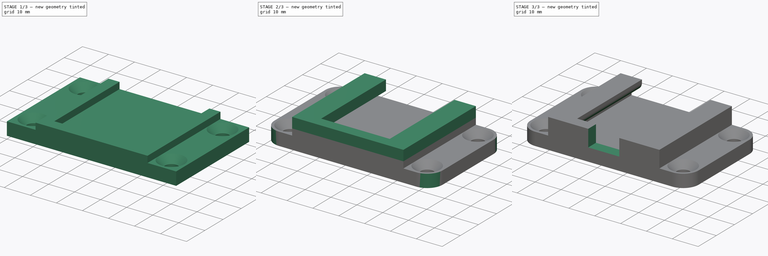
[diagram: build sequence overview — one tinted view per stage of 3, left to right]
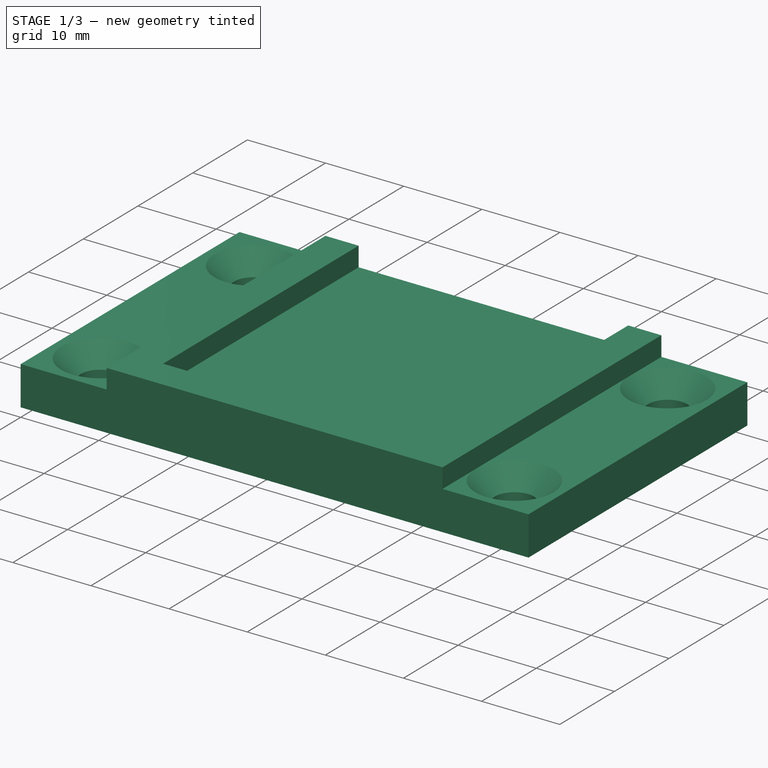
[diagram: stage 1 of 3 — iso view after this stage's code; geometry added in this stage tinted green]
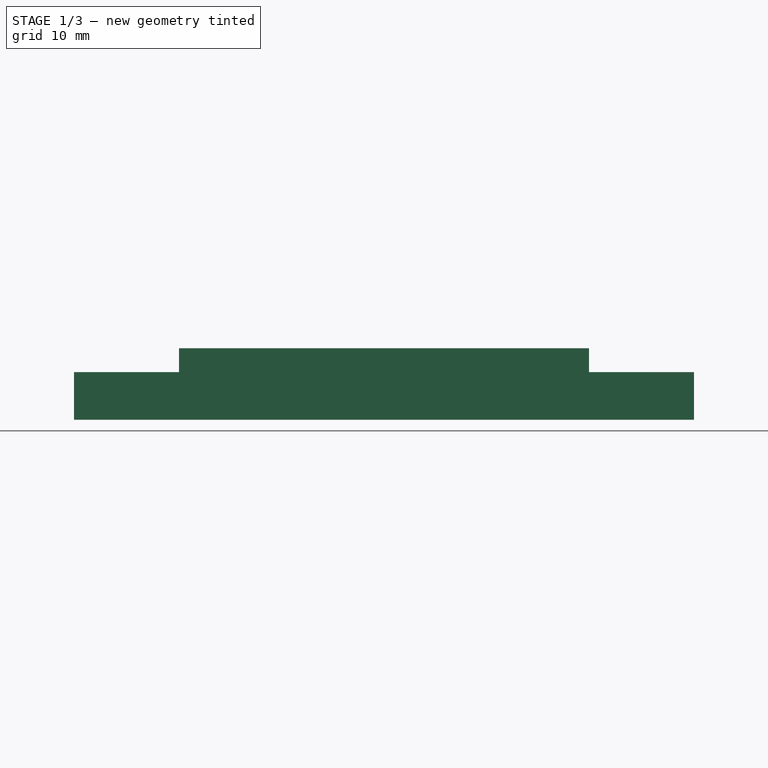
[diagram: stage 1 of 3 — front view after this stage's code; geometry added in this stage tinted green]
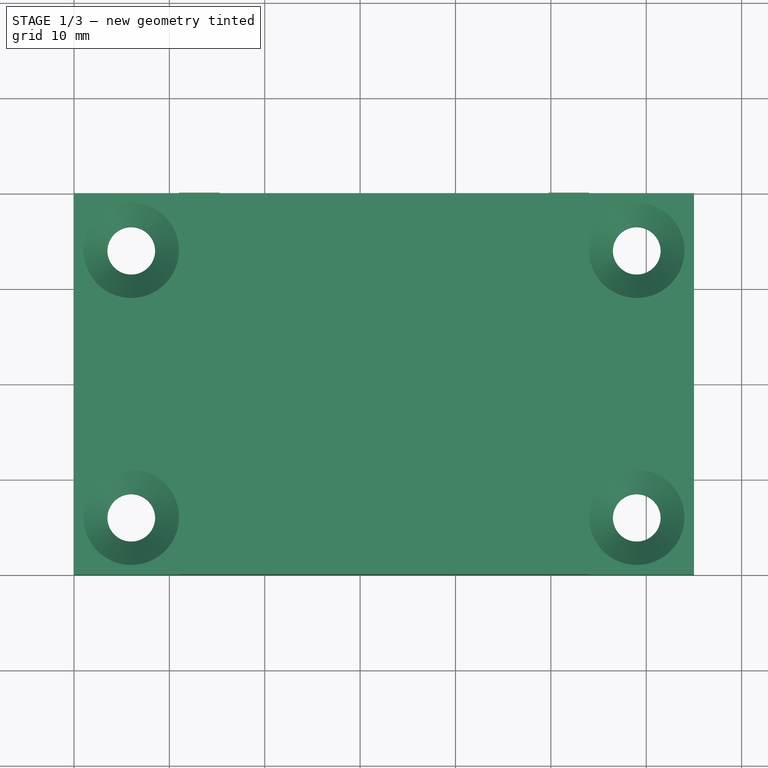
[diagram: stage 1 of 3 — top view after this stage's code; geometry added in this stage tinted green]
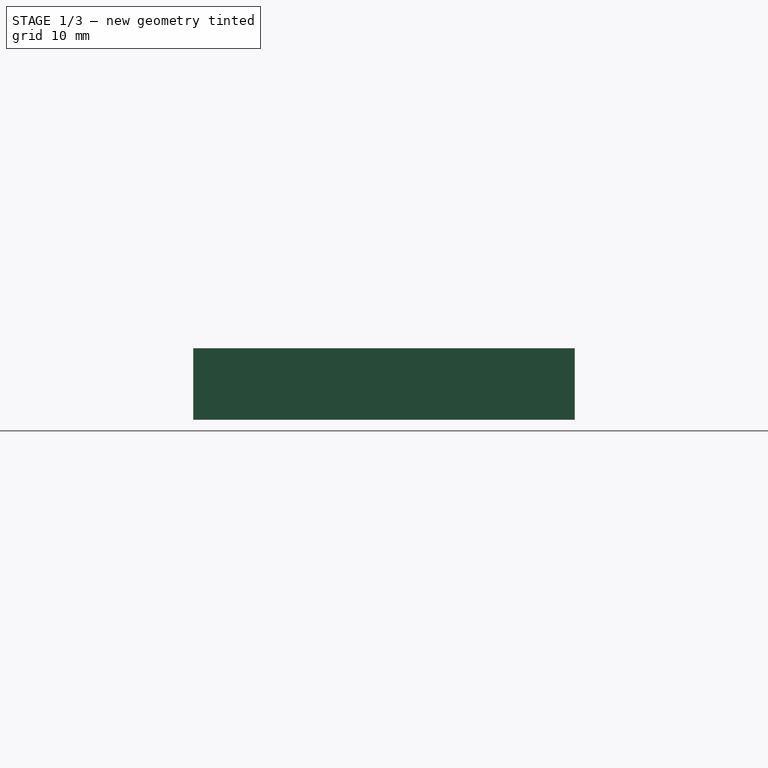
[diagram: stage 1 of 3 — right view after this stage's code; geometry added in this stage tinted green]
FCSTD DOCUMENT  (FreeCAD 0.21R33771 (Git))
Label: Vorwerk-SC7
License: All rights reserved
LicenseURL: https://en.wikipedia.org/wiki/All_rights_reserved
objects: Sketcher::SketchObject×4, PartDesign::Pad×3, PartDesign::Fillet×3, PartDesign::Hole×1, PartDesign::Pocket×1, PartDesign::Body×1
note: 21 computed .brp shape members not serialized (recipe doc carries the construction recipe); baked Part::Feature solids carry a one-line shape summary decoded from their .brp

FEATURE [Sketcher::SketchObject] Sketch
  FullyConstrained = true
  MapMode = 5
  Support = -> [XY_Plane]
  sketch-geometry (24):
    g0: LineSegment StartX=0 StartY=0 StartZ=0 EndX=65 EndY=0 EndZ=0
    g1: LineSegment StartX=65 StartY=0 StartZ=0 EndX=65 EndY=40 EndZ=0
    g2: LineSegment StartX=65 StartY=40 StartZ=0 EndX=0 EndY=40 EndZ=0
    g3: LineSegment StartX=0 StartY=40 StartZ=0 EndX=0 EndY=0 EndZ=0
    g4: Circle CenterX=6 CenterY=34 CenterZ=0 NormalX=0 NormalY=0 NormalZ=1 AngleXU=0 Radius=2
    g5: Circle CenterX=59 CenterY=34 CenterZ=0 NormalX=0 NormalY=0 NormalZ=1 AngleXU=0 Radius=2
    g6: Circle CenterX=59 CenterY=6 CenterZ=0 NormalX=0 NormalY=0 NormalZ=1 AngleXU=0 Radius=2
    g7: Circle CenterX=6 CenterY=6 CenterZ=0 NormalX=0 NormalY=0 NormalZ=1 AngleXU=0 Radius=2
    g8: LineSegment StartX=0 StartY=0 StartZ=0 EndX=6 EndY=0 EndZ=0
    g9: LineSegment StartX=6 StartY=0 StartZ=0 EndX=6 EndY=6 EndZ=0
    g10: LineSegment StartX=6 StartY=6 StartZ=0 EndX=0 EndY=6 EndZ=0
    g11: LineSegment StartX=0 StartY=6 StartZ=0 EndX=0 EndY=0 EndZ=0
    g12: LineSegment StartX=0 StartY=40 StartZ=0 EndX=6 EndY=40 EndZ=0
    g13: LineSegment StartX=6 StartY=40 StartZ=0 EndX=6 EndY=34 EndZ=0
    g14: LineSegment StartX=6 StartY=34 StartZ=0 EndX=0 EndY=34 EndZ=0
    g15: LineSegment StartX=0 StartY=34 StartZ=0 EndX=0 EndY=40 EndZ=0
    g16: LineSegment StartX=65 StartY=40 StartZ=0 EndX=59 EndY=40 EndZ=0
    g17: LineSegment StartX=59 StartY=40 StartZ=0 EndX=59 EndY=34 EndZ=0
    g18: LineSegment StartX=59 StartY=34 StartZ=0 EndX=65 EndY=34 EndZ=0
    g19: LineSegment StartX=65 StartY=34 StartZ=0 EndX=65 EndY=40 EndZ=0
    g20: LineSegment StartX=65 StartY=0 StartZ=0 EndX=59 EndY=0 EndZ=0
    g21: LineSegment StartX=59 StartY=0 StartZ=0 EndX=59 EndY=6 EndZ=0
    g22: LineSegment StartX=59 StartY=6 StartZ=0 EndX=65 EndY=6 EndZ=0
    g23: LineSegment StartX=65 StartY=6 StartZ=0 EndX=65 EndY=0 EndZ=0
  constraints (63):
    c: Coincident(g0,g1)
    c: Coincident(g1,g2)
    c: Coincident(g2,g3)
    c: Coincident(g3,g0)
    c: Horizontal(g0)
    c: Horizontal(g2)
    c: Vertical(g1)
    c: Vertical(g3)
    c: Coincident(g0,g-1)
    c: DistanceX(g0,g0) = 65
    c: DistanceY(g3,g3) = 40
    c: Equal(g7,g4)
    c: Equal(g4,g5)
    c: Equal(g5,g6)
    c: Coincident(g8,g9)
    c: Coincident(g9,g10)
    c: Coincident(g10,g11)
    c: Coincident(g11,g8)
    c: Horizontal(g8)
    c: Horizontal(g10)
    c: Vertical(g9)
    c: Vertical(g11)
    c: Coincident(g8,g0)
    c: Coincident(g9,g7)
    c: Coincident(g12,g13)
    c: Coincident(g13,g14)
    c: Coincident(g14,g15)
    c: Coincident(g15,g12)
    c: Horizontal(g12)
    c: Horizontal(g14)
    c: Vertical(g13)
    c: Vertical(g15)
    c: Coincident(g12,g2)
    c: Coincident(g13,g4)
    c: Coincident(g16,g17)
    c: Coincident(g17,g18)
    c: Coincident(g18,g19)
    c: Coincident(g19,g16)
    c: Horizontal(g16)
    c: Horizontal(g18)
    c: Vertical(g17)
    c: Vertical(g19)
    c: Coincident(g16,g1)
    c: Coincident(g17,g5)
    c: Coincident(g20,g21)
    c: Coincident(g21,g22)
    c: Coincident(g22,g23)
    c: Coincident(g23,g20)
    c: Horizontal(g20)
    c: Horizontal(g22)
    c: Vertical(g21)
    c: Vertical(g23)
    c: Coincident(g20,g0)
    c: Coincident(g21,g6)
    c: Equal(g21,g22)
    c: Equal(g9,g10)
    c: Equal(g14,g13)
    c: Equal(g18,g17)
    c: Equal(g21,g9)
    c: Equal(g9,g13)
    c: Equal(g13,g17)
    c: Diameter(g7) = 4
    c: DistanceY(g0,g10) = 6
FEATURE [PartDesign::Pad] Pad
  Direction = (0,0,1)
  Length = 5
  Length2 = 10
  Profile = -> Sketch
  ReferenceAxis = -> Sketch [N_Axis]
  Type = 0
FEATURE [PartDesign::Hole] Hole
  BaseFeature = -> Pad
  CustomThreadClearance = 0
  Depth = 25
  DepthType = 0
  Diameter = 5
  DrillForDepth = false
  DrillPoint = 1
  DrillPointAngle = 118
  HoleCutCountersinkAngle = 90
  HoleCutCustomValues = false
  HoleCutDepth = 0
  HoleCutDiameter = 10
  HoleCutType = 2
  ModelThread = false
  Profile = -> Pad [Edge24,Edge15,Edge18,Edge21]
  Tapered = false
  TaperedAngle = 90
  ThreadClass = 0
  ThreadDepth = 25
  ThreadDepthType = 0
  ThreadDirection = 0
  ThreadFit = 0
  ThreadSize = 0
  ThreadType = 0
  Threaded = false
  UseCustomThreadClearance = false
FEATURE [Sketcher::SketchObject] Sketch001
  ExternalGeometry = -> [Hole]
  FullyConstrained = true
  MapMode = 5
  Placement = pos=(0,0,5) rot=(0,0,1;0rad)
  Support = -> [Hole]
  sketch-geometry (11):
    g0: LineSegment StartX=15.25 StartY=0 StartZ=0 EndX=49.75 EndY=0 EndZ=0
    g1: GeomPoint X=32.5 Y=0 Z=0
    g2: LineSegment StartX=11 StartY=40 StartZ=0 EndX=15.25 EndY=40 EndZ=0
    g3: LineSegment StartX=15.25 StartY=40 StartZ=0 EndX=15.25 EndY=4.25 EndZ=0
    g4: LineSegment StartX=11 StartY=0 StartZ=0 EndX=11 EndY=40 EndZ=0
    g5: LineSegment StartX=54 StartY=40 StartZ=0 EndX=49.75 EndY=40 EndZ=0
    g6: LineSegment StartX=49.75 StartY=40 StartZ=0 EndX=49.75 EndY=4.25 EndZ=0
    g7: LineSegment StartX=54 StartY=0 StartZ=0 EndX=54 EndY=40 EndZ=0
    g8: LineSegment StartX=15.25 StartY=4.25 StartZ=0 EndX=49.75 EndY=4.25 EndZ=0
    g9: LineSegment StartX=15.25 StartY=4.25 StartZ=0 EndX=15.25 EndY=0 EndZ=0
    g10: LineSegment StartX=11 StartY=0 StartZ=0 EndX=54 EndY=0 EndZ=0
  constraints (31):
    c: PointOnObject(g0,g-1)
    c: Symmetric(g0,g0,g1)
    c: Symmetric(g-1,g-3,g1)
    c: DistanceX(g0,g0) = 34.5
    c: Coincident(g2,g3)
    c: Coincident(g4,g2)
    c: Horizontal(g2)
    c: Vertical(g3)
    c: Vertical(g4)
    c: PointOnObject(g2,g-4)
    c: Tangent(g4,g-6)
    c: PointOnObject(g4,g-1)
    c: Coincident(g5,g6)
    c: Coincident(g7,g5)
    c: Horizontal(g5)
    c: Vertical(g6)
    c: Vertical(g7)
    c: PointOnObject(g5,g-4)
    c: Tangent(g-5,g7)
    c: PointOnObject(g7,g-1)
    c: Coincident(g8,g3)
    c: Coincident(g8,g6)
    c: Horizontal(g8)
    c: Equal(g2,g5)
    c: Vertical(g3,g0)
    c: Coincident(g9,g3)
    c: Coincident(g9,g0)
    c: Equal(g9,g2)
    c: Coincident(g10,g4)
    c: Coincident(g10,g7)
    c: DistanceX(g2,g2) = 4.25
FEATURE [PartDesign::Pad] Pad001
  BaseFeature = -> Hole
  Direction = (0,0,1)
  Length = 2.5
  Length2 = 10
  Profile = -> Sketch001
  ReferenceAxis = -> Sketch001 [N_Axis]
  Type = 0
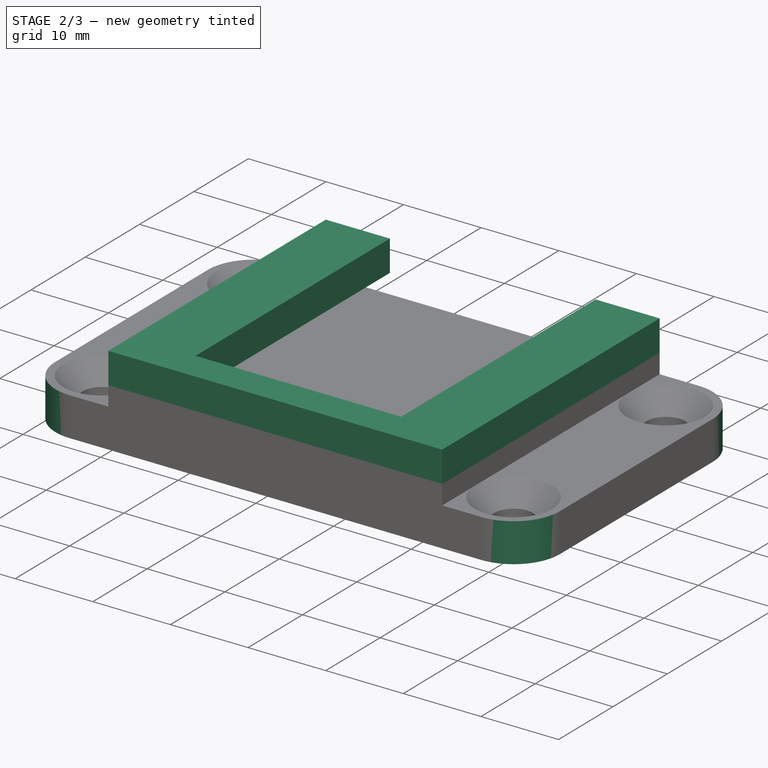
[diagram: stage 2 of 3 — iso view after this stage's code; geometry added in this stage tinted green]
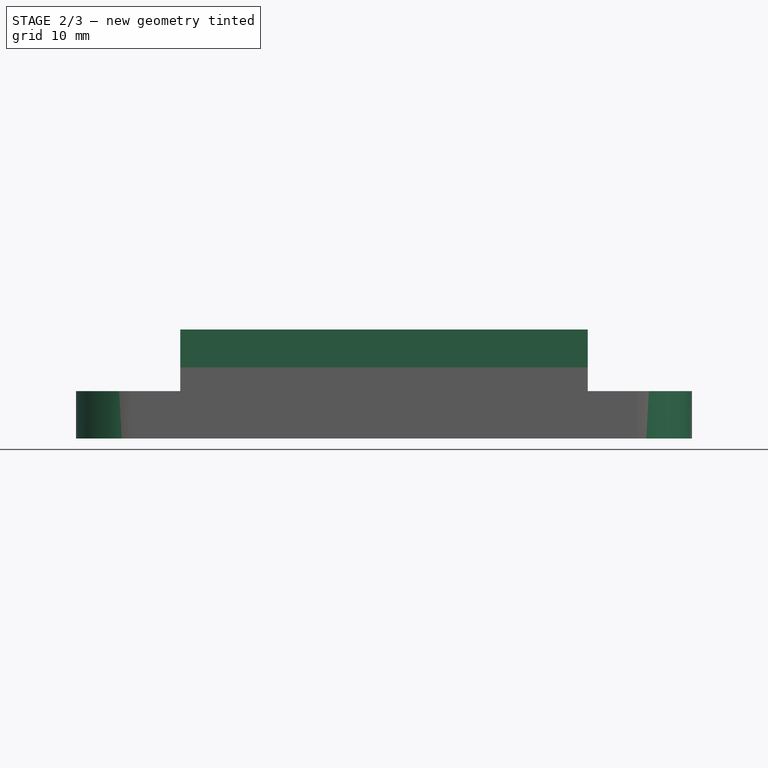
[diagram: stage 2 of 3 — front view after this stage's code; geometry added in this stage tinted green]
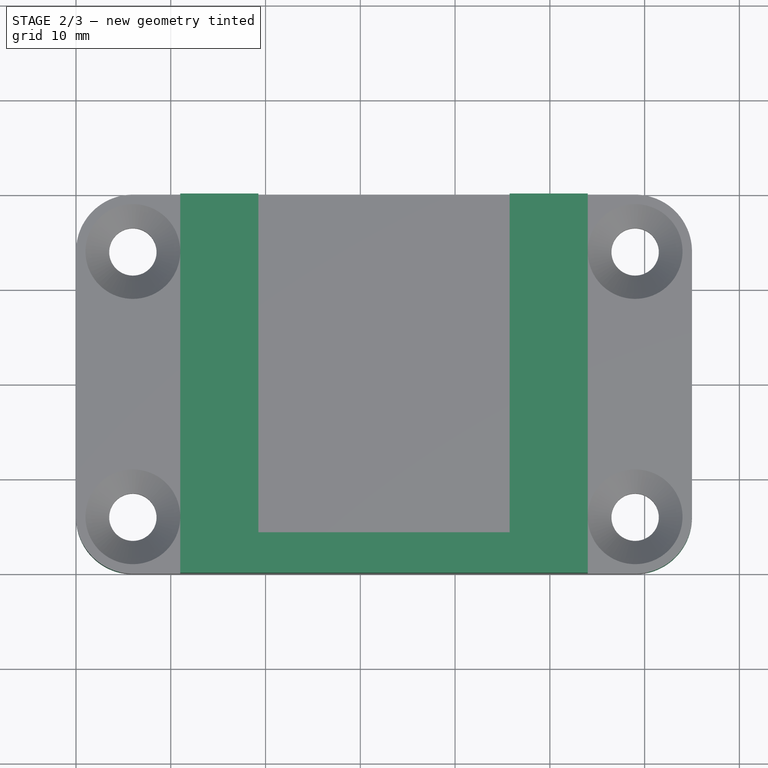
[diagram: stage 2 of 3 — top view after this stage's code; geometry added in this stage tinted green]
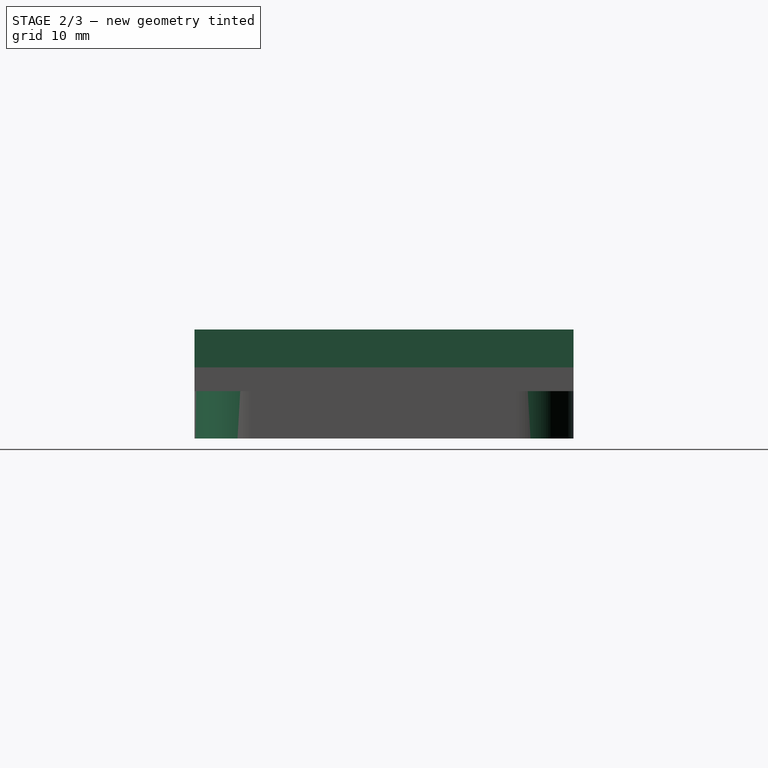
[diagram: stage 2 of 3 — right view after this stage's code; geometry added in this stage tinted green]
FEATURE [Sketcher::SketchObject] Sketch002
  ExternalGeometry = -> [Pad001]
  FullyConstrained = true
  MapMode = 5
  Placement = pos=(0,0,7.5) rot=(0,0,1;0rad)
  Support = -> [Pad001]
  sketch-geometry (10):
    g0: LineSegment StartX=11 StartY=40 StartZ=0 EndX=15.25 EndY=40 EndZ=0
    g1: LineSegment StartX=11 StartY=40 StartZ=0 EndX=11 EndY=0 EndZ=0
    g2: LineSegment StartX=11 StartY=0 StartZ=0 EndX=54 EndY=0 EndZ=0
    g3: LineSegment StartX=54 StartY=0 StartZ=0 EndX=54 EndY=40 EndZ=0
    g4: LineSegment StartX=54 StartY=40 StartZ=0 EndX=49.75 EndY=40 EndZ=0
    g5: LineSegment StartX=49.75 StartY=40 StartZ=0 EndX=45.75 EndY=40 EndZ=0
    g6: LineSegment StartX=15.25 StartY=40 StartZ=0 EndX=19.25 EndY=40 EndZ=0
    g7: LineSegment StartX=19.25 StartY=40 StartZ=0 EndX=19.25 EndY=4.25 EndZ=0
    g8: LineSegment StartX=45.75 StartY=40 StartZ=0 EndX=45.75 EndY=4.25 EndZ=0
    g9: LineSegment StartX=45.75 StartY=4.25 StartZ=0 EndX=19.25 EndY=4.25 EndZ=0
  constraints (24):
    c: Coincident(g0,g-6)
    c: Coincident(g0,g-4)
    c: Coincident(g1,g0)
    c: Coincident(g1,g-6)
    c: Coincident(g2,g1)
    c: Coincident(g2,g-7)
    c: Coincident(g3,g2)
    c: Coincident(g3,g-8)
    c: Coincident(g4,g3)
    c: Coincident(g4,g-8)
    c: Coincident(g5,g4)
    c: Horizontal(g5)
    c: Coincident(g6,g0)
    c: Horizontal(g6)
    c: Coincident(g7,g6)
    c: PointOnObject(g7,g-10)
    c: Vertical(g7)
    c: Coincident(g8,g5)
    c: PointOnObject(g8,g-10)
    c: Vertical(g8)
    c: Coincident(g9,g8)
    c: Coincident(g9,g7)
    c: Equal(g6,g5)
    c: DistanceX(g6,g6) = 4
FEATURE [PartDesign::Pad] Pad002
  BaseFeature = -> Pad001
  Direction = (0,0,1)
  Length = 4
  Length2 = 10
  Profile = -> Sketch002
  ReferenceAxis = -> Sketch002 [N_Axis]
  Type = 0
FEATURE [PartDesign::Fillet] Fillet
  Base = -> Pad002 [Edge7,Edge10,Edge1,Edge2]
  BaseFeature = -> Pad002
  Radius = 6
  SupportTransform = false
  UseAllEdges = false
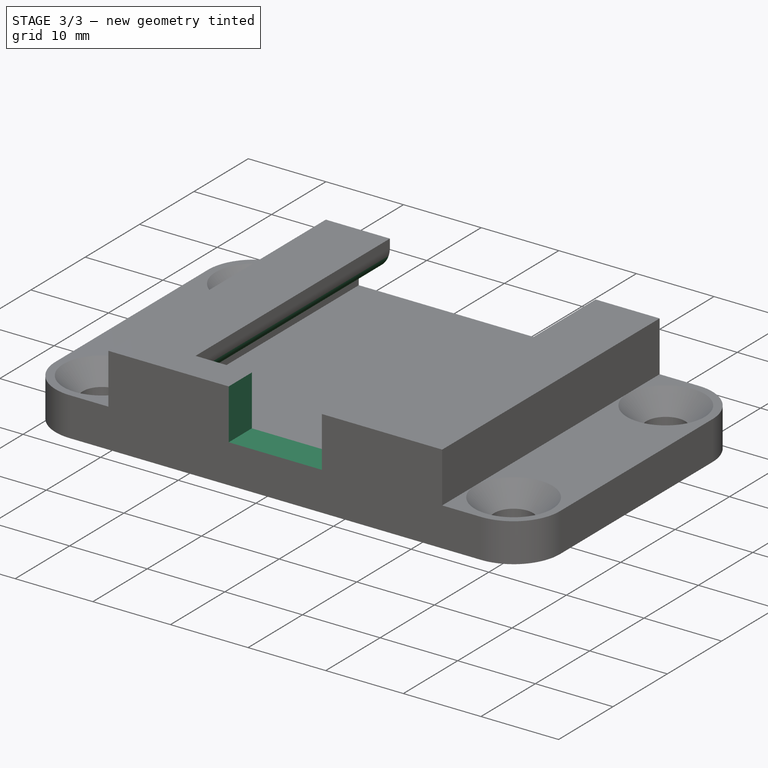
[diagram: stage 3 of 3 — iso view after this stage's code; geometry added in this stage tinted green]
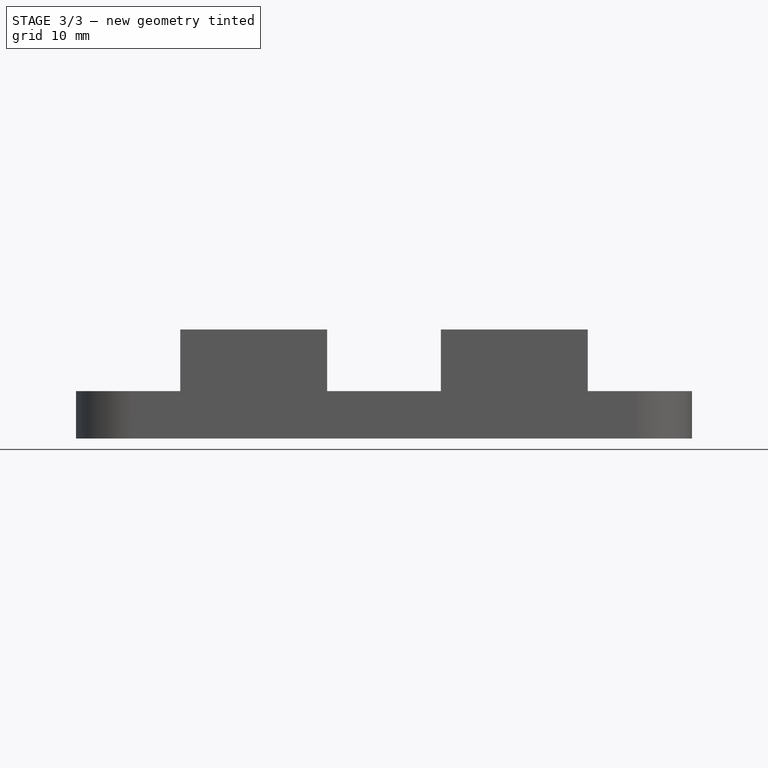
[diagram: stage 3 of 3 — front view after this stage's code; geometry added in this stage tinted green]
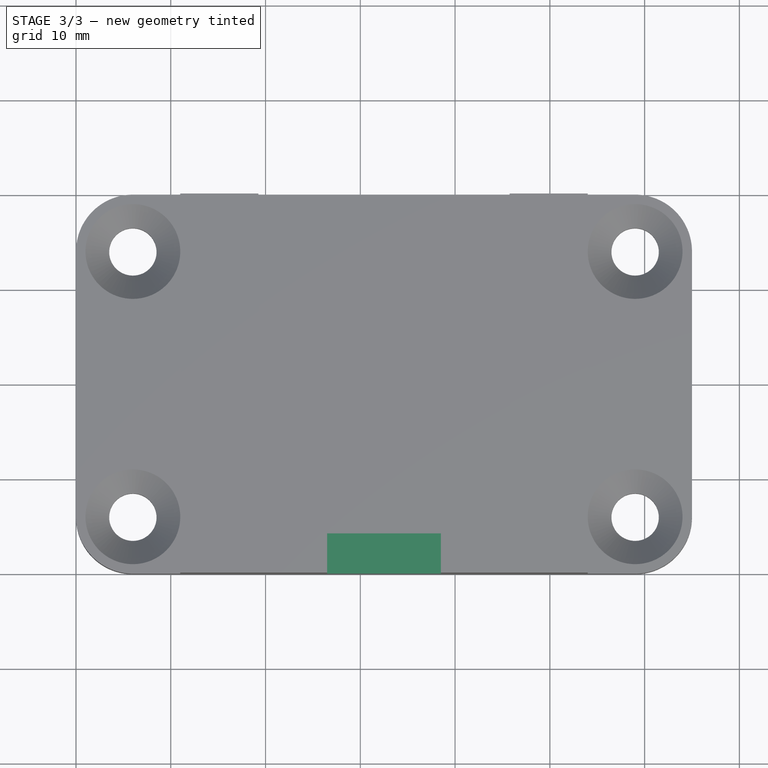
[diagram: stage 3 of 3 — top view after this stage's code; geometry added in this stage tinted green]
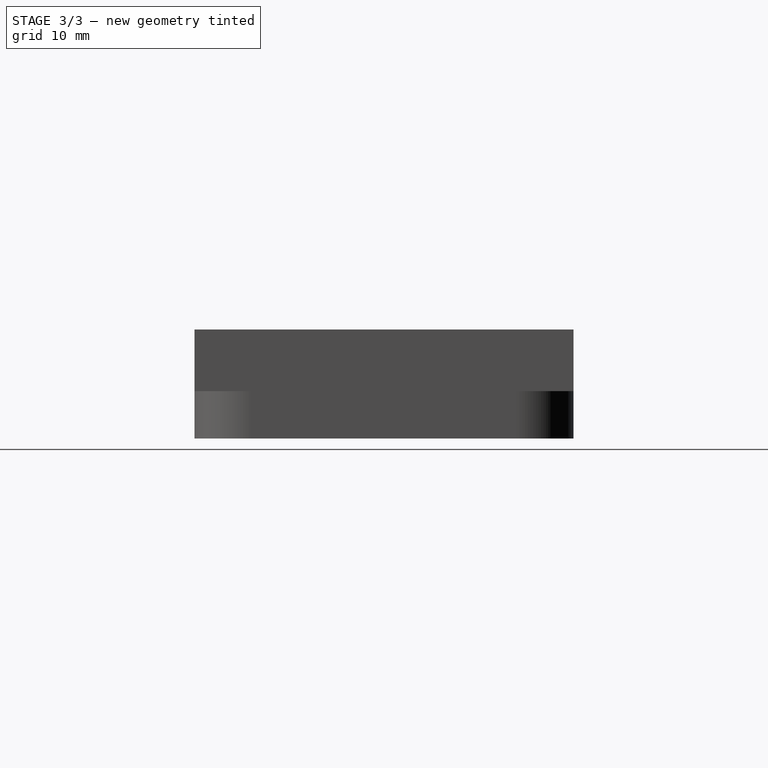
[diagram: stage 3 of 3 — right view after this stage's code; geometry added in this stage tinted green]
FEATURE [Sketcher::SketchObject] Sketch003
  ExternalGeometry = -> [Fillet]
  FullyConstrained = true
  MapMode = 5
  Placement = pos=(3e-16,4.25,0) rot=(0,0.707107,0.707107;3.14159rad)
  Support = -> [Fillet]
  sketch-geometry (5):
    g0: GeomPoint X=-32.5 Y=5 Z=0
    g1: LineSegment StartX=-38.5 StartY=5 StartZ=0 EndX=-26.5 EndY=5 EndZ=0
    g2: LineSegment StartX=-38.5 StartY=5 StartZ=0 EndX=-38.5 EndY=11.5 EndZ=0
    g3: LineSegment StartX=-26.5 StartY=5 StartZ=0 EndX=-26.5 EndY=11.5 EndZ=0
    g4: LineSegment StartX=-38.5 StartY=11.5 StartZ=0 EndX=-26.5 EndY=11.5 EndZ=0
  constraints (12):
    c: Symmetric(g-3,g-3,g0)
    c: PointOnObject(g1,g-3)
    c: Symmetric(g1,g1,g0)
    c: DistanceX(g1,g1) = 12
    c: Coincident(g2,g1)
    c: PointOnObject(g2,g-4)
    c: Vertical(g2)
    c: Coincident(g3,g1)
    c: PointOnObject(g3,g-4)
    c: Vertical(g3)
    c: Coincident(g4,g2)
    c: Coincident(g4,g3)
FEATURE [PartDesign::Pocket] Pocket
  BaseFeature = -> Fillet
  Direction = (-1e-16,-1,2e-16)
  Length = 5
  Length2 = 5
  Profile = -> Sketch003
  ReferenceAxis = -> Sketch003 [N_Axis]
  Type = 1
FEATURE [PartDesign::Fillet] Fillet001
  Base = -> Pocket [Edge107,Edge110]
  BaseFeature = -> Pocket
  Radius = 1
  SupportTransform = false
  UseAllEdges = false
FEATURE [PartDesign::Fillet] Fillet002
  Base = -> Fillet001 [Edge120,Edge37]
  BaseFeature = -> Fillet001
  Radius = 2.9
  SupportTransform = false
  UseAllEdges = false
FEATURE [PartDesign::Body] Body  label="Körper"
  Group = -> [Sketch,Pad,Hole,Sketch001,Pad001,Sketch002,Pad002,Fillet,Sketch003,Pocket,Fillet001,Fillet002]
  Origin = -> Origin
  Tip = -> Fillet002
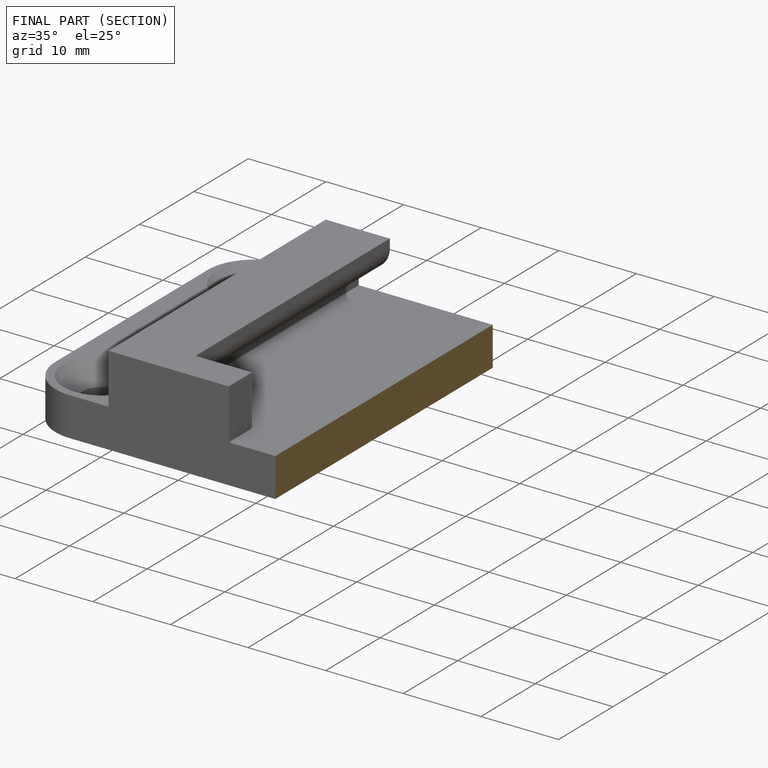
[diagram: finished part — half-section view (interior)]
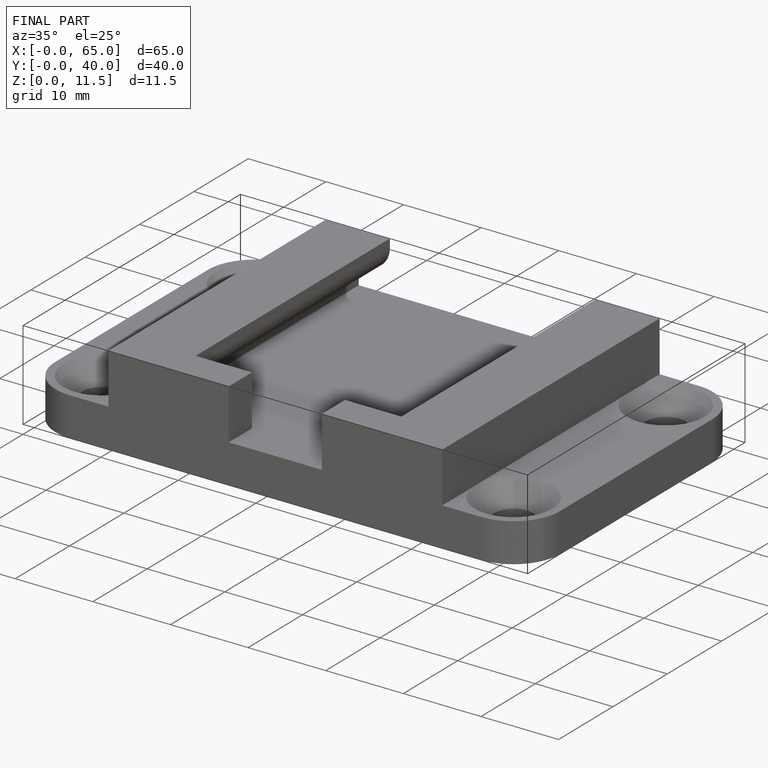
[diagram: finished part — iso view with bounding-box wireframe]
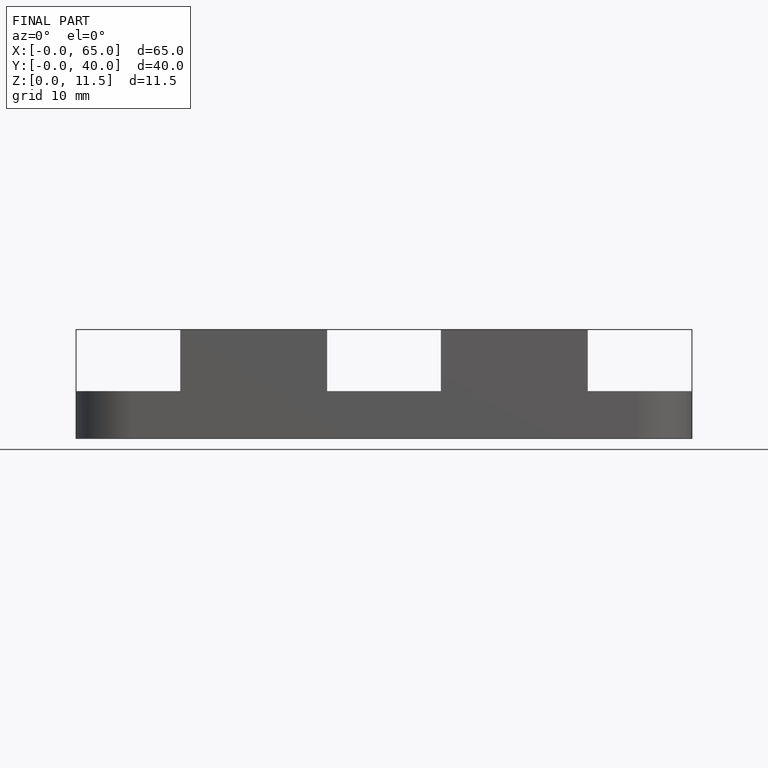
[diagram: finished part — front view with bounding-box wireframe]
